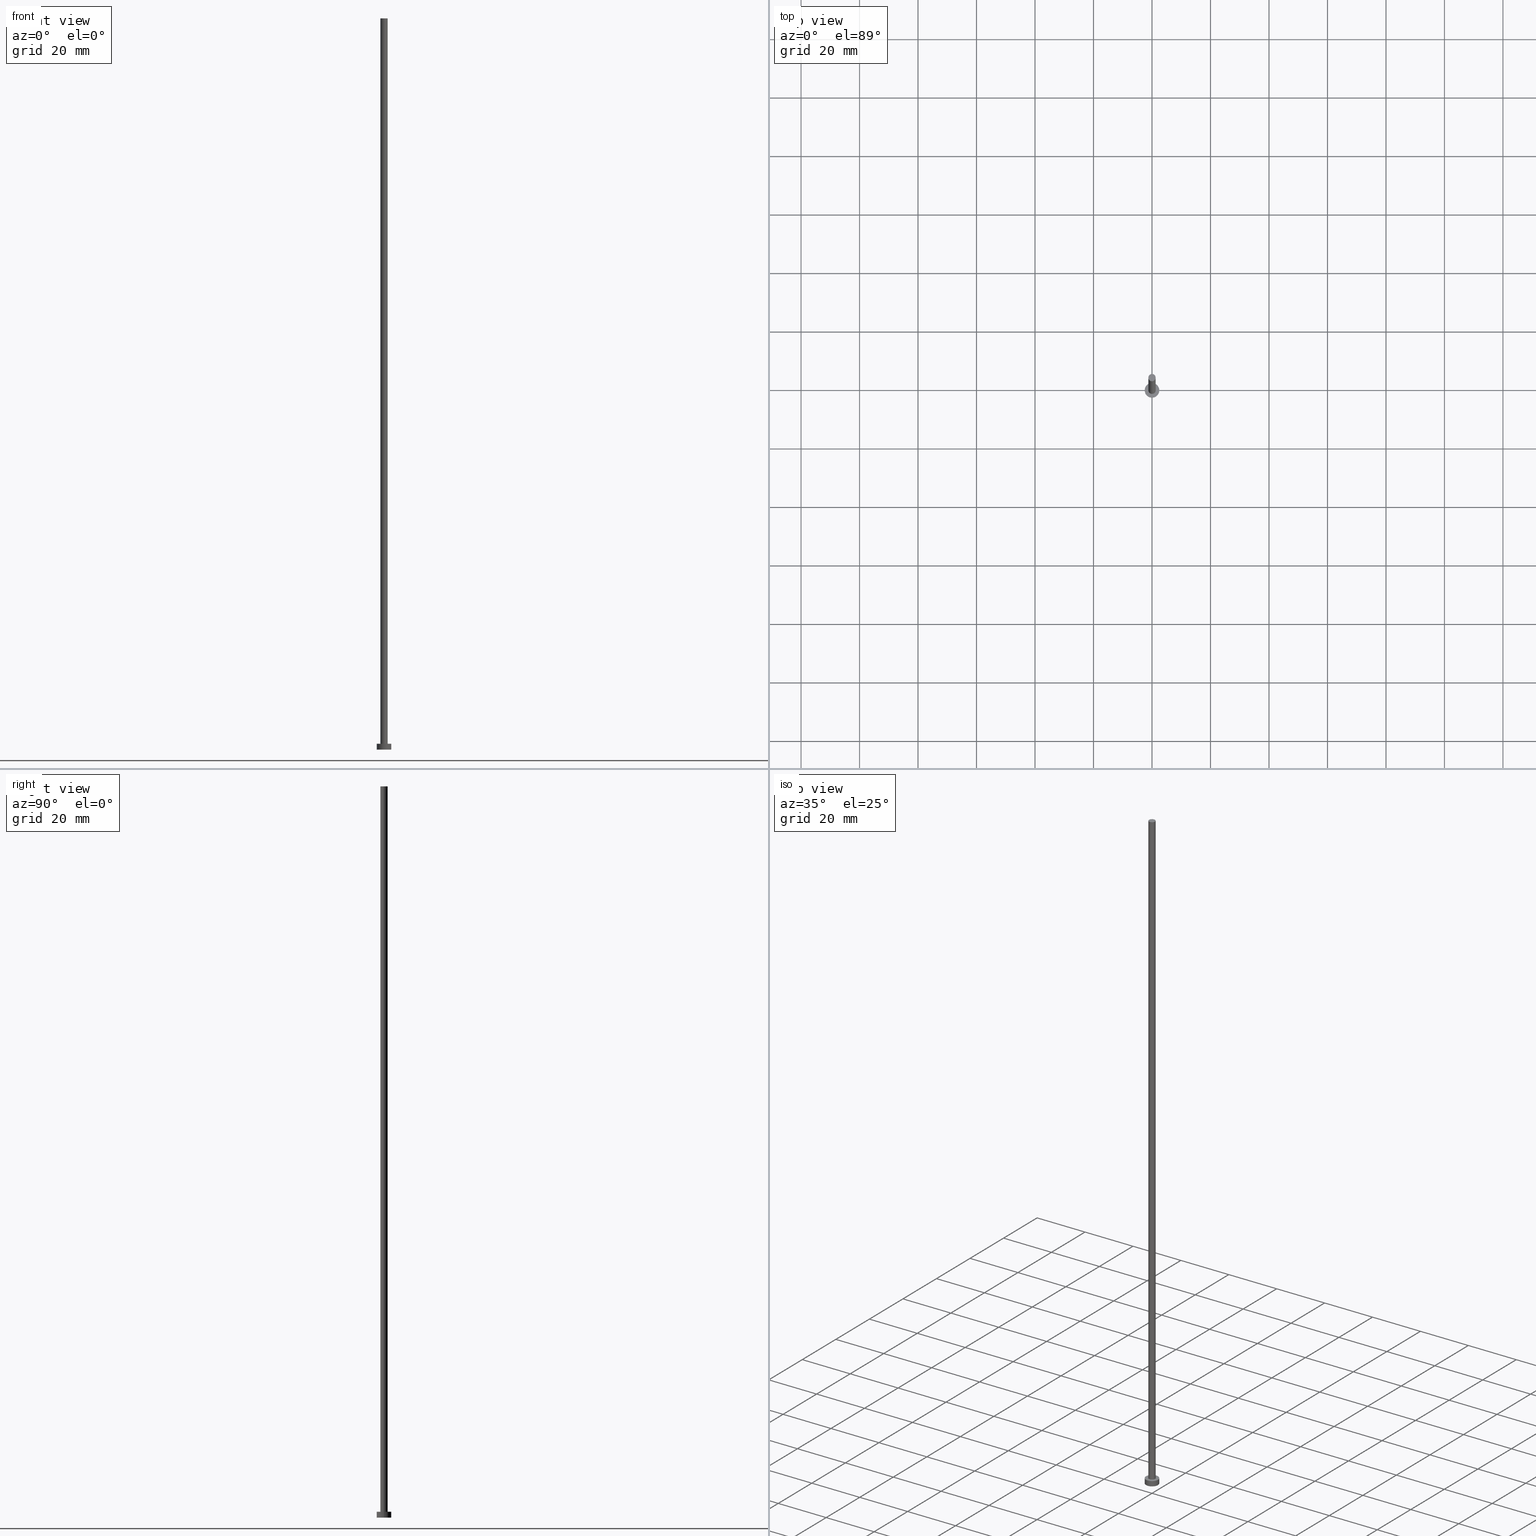
[diagram: canonical four-view strip — front | top / right | iso, engineering-drawing reading convention]
A machine part, canonical four-view strip (front | top / right | iso — engineering-drawing reading convention). The complete STEP part file that produces these views, byte-faithful:
ISO-10303-21;
HEADER;
FILE_DESCRIPTION (( 'STEP AP203' ),
    '1' );
FILE_NAME ('c1be.STEP',
    '2023-02-13T14:27:45',
    ( '' ),
    ( '' ),
    'SwSTEP 2.0',
    'SolidWorks 2019',
    '' );
FILE_SCHEMA (( 'CONFIG_CONTROL_DESIGN' ));
ENDSEC;

DATA;
#1 = ADVANCED_FACE ( 'NONE', ( #233 ), #209, .T. ) ;
#2 = DATE_TIME_ROLE ( 'classification_date' ) ;
#3 = DIRECTION ( 'NONE',  ( 0.000000000000000000, 0.000000000000000000, 1.000000000000000000 ) ) ;
#4 = PERSON_AND_ORGANIZATION_ROLE ( 'classification_officer' ) ;
#5 = DIRECTION ( 'NONE',  ( -0.000000000000000000, -0.000000000000000000, -1.000000000000000000 ) ) ;
#6 = DATE_AND_TIME ( #243, #110 ) ;
#7 = APPROVAL_ROLE ( '' ) ;
#8 = EDGE_LOOP ( 'NONE', ( #17, #232, #82, #156 ) ) ;
#9 = FACE_OUTER_BOUND ( 'NONE', #231, .T. ) ;
#10 = ORIENTED_EDGE ( 'NONE', *, *, #134, .T. ) ;
#11 = CARTESIAN_POINT ( 'NONE',  ( -1.250000000000000000, 0.000000000000000000, 250.0000000000000000 ) ) ;
#12 = CARTESIAN_POINT ( 'NONE',  ( 0.000000000000000000, 0.000000000000000000, 0.000000000000000000 ) ) ;
#13 = EDGE_CURVE ( 'NONE', #176, #99, #210, .T. ) ;
#14 = ORIENTED_EDGE ( 'NONE', *, *, #132, .F. ) ;
#15 = VERTEX_POINT ( 'NONE', #59 ) ;
#16 = SHAPE_DEFINITION_REPRESENTATION ( #219, #164 ) ;
#17 = ORIENTED_EDGE ( 'NONE', *, *, #34, .F. ) ;
#18 = APPROVAL_STATUS ( 'not_yet_approved' ) ;
#19 = APPROVAL_DATE_TIME ( #142, #96 ) ;
#20 = AXIS2_PLACEMENT_3D ( 'NONE', #158, #155, #60 ) ;
#21 = SECURITY_CLASSIFICATION ( '', '', #188 ) ;
#22 = DIRECTION ( 'NONE',  ( 0.000000000000000000, 0.000000000000000000, 1.000000000000000000 ) ) ;
#23 = VECTOR ( 'NONE', #70, 1000.000000000000000 ) ;
#24 = APPROVAL_PERSON_ORGANIZATION ( #149, #185, #114 ) ;
#25 = FACE_OUTER_BOUND ( 'NONE', #75, .T. ) ;
#26 = CC_DESIGN_PERSON_AND_ORGANIZATION_ASSIGNMENT ( #86, #65, ( #76 ) ) ;
#27 = DIRECTION ( 'NONE',  ( 1.000000000000000000, 0.000000000000000000, 0.000000000000000000 ) ) ;
#28 = VECTOR ( 'NONE', #171, 1000.000000000000000 ) ;
#29 = DATE_AND_TIME ( #52, #167 ) ;
#30 = VERTEX_POINT ( 'NONE', #93 ) ;
#31 = DIRECTION ( 'NONE',  ( -1.000000000000000000, 0.000000000000000000, 0.000000000000000000 ) ) ;
#32 = ORIENTED_EDGE ( 'NONE', *, *, #134, .F. ) ;
#33 = DIRECTION ( 'NONE',  ( -0.000000000000000000, -0.000000000000000000, -1.000000000000000000 ) ) ;
#34 = EDGE_CURVE ( 'NONE', #15, #99, #113, .T. ) ;
#35 = ORIENTED_EDGE ( 'NONE', *, *, #90, .F. ) ;
#36 = DIRECTION ( 'NONE',  ( 0.000000000000000000, 0.000000000000000000, 1.000000000000000000 ) ) ;
#37 = DIRECTION ( 'NONE',  ( -0.000000000000000000, -0.000000000000000000, -1.000000000000000000 ) ) ;
#38 = AXIS2_PLACEMENT_3D ( 'NONE', #72, #106, #91 ) ;
#39 = ADVANCED_FACE ( 'NONE', ( #9 ), #84, .T. ) ;
#40 = DIRECTION ( 'NONE',  ( 1.000000000000000000, 0.000000000000000000, 0.000000000000000000 ) ) ;
#41 = LINE ( 'NONE', #202, #23 ) ;
#42 = PERSON_AND_ORGANIZATION ( #123, #163 ) ;
#43 = PRODUCT ( 'c1be', 'c1be', '', ( #195 ) ) ;
#44 = LOCAL_TIME ( 15, 27, 45.00000000000000000, #153 ) ;
#45 = FACE_OUTER_BOUND ( 'NONE', #189, .T. ) ;
#46 = VECTOR ( 'NONE', #138, 1000.000000000000000 ) ;
#47 = PERSON_AND_ORGANIZATION ( #123, #163 ) ;
#48 = DIRECTION ( 'NONE',  ( -1.000000000000000000, 0.000000000000000000, 0.000000000000000000 ) ) ;
#49 = APPROVAL ( #92, 'NEUR�EN�' ) ;
#50 = APPROVAL_STATUS ( 'not_yet_approved' ) ;
#51 = PRODUCT_DEFINITION_FORMATION_WITH_SPECIFIED_SOURCE ( 'LIBOVOLN�', '', #43, .NOT_KNOWN. ) ;
#52 = CALENDAR_DATE ( 2023, 13, 2 ) ;
#53 = ORIENTED_EDGE ( 'NONE', *, *, #13, .F. ) ;
#54 = VERTEX_POINT ( 'NONE', #192 ) ;
#55 = ORIENTED_EDGE ( 'NONE', *, *, #102, .F. ) ;
#56 = EDGE_CURVE ( 'NONE', #78, #15, #71, .T. ) ;
#57 = ORIENTED_EDGE ( 'NONE', *, *, #216, .T. ) ;
#58 = CARTESIAN_POINT ( 'NONE',  ( 0.000000000000000000, 0.000000000000000000, 2.000000000000000000 ) ) ;
#59 = CARTESIAN_POINT ( 'NONE',  ( 1.250000000000000000, 1.530808498934191571E-16, 250.0000000000000000 ) ) ;
#60 = DIRECTION ( 'NONE',  ( 1.000000000000000000, 0.000000000000000000, 0.000000000000000000 ) ) ;
#61 = AXIS2_PLACEMENT_3D ( 'NONE', #62, #116, #228 ) ;
#62 = CARTESIAN_POINT ( 'NONE',  ( 0.000000000000000000, 0.000000000000000000, 2.000000000000000000 ) ) ;
#63 = CALENDAR_DATE ( 2023, 13, 2 ) ;
#64 = DIRECTION ( 'NONE',  ( 1.000000000000000000, 0.000000000000000000, 0.000000000000000000 ) ) ;
#65 = PERSON_AND_ORGANIZATION_ROLE ( 'creator' ) ;
#66 = VECTOR ( 'NONE', #95, 1000.000000000000000 ) ;
#67 = AXIS2_PLACEMENT_3D ( 'NONE', #130, #22, #222 ) ;
#68 = DIRECTION ( 'NONE',  ( 1.000000000000000000, 0.000000000000000000, 0.000000000000000000 ) ) ;
#69 = APPLICATION_CONTEXT ( 'configuration controlled 3d designs of mechanical parts and assemblies' ) ;
#70 = DIRECTION ( 'NONE',  ( -0.000000000000000000, -0.000000000000000000, -1.000000000000000000 ) ) ;
#71 = CIRCLE ( 'NONE', #20, 1.250000000000000000 ) ;
#72 = CARTESIAN_POINT ( 'NONE',  ( 0.000000000000000000, 0.000000000000000000, 250.0000000000000000 ) ) ;
#73 = LOCAL_TIME ( 15, 27, 45.00000000000000000, #234 ) ;
#74 = PERSON_AND_ORGANIZATION_ROLE ( 'creator' ) ;
#75 = EDGE_LOOP ( 'NONE', ( #35, #154, #227, #57 ) ) ;
#76 = PRODUCT_DEFINITION ( 'NEZN�M�', '', #51, #225 ) ;
#77 = PERSON_AND_ORGANIZATION ( #123, #163 ) ;
#78 = VERTEX_POINT ( 'NONE', #214 ) ;
#79 = LINE ( 'NONE', #11, #66 ) ;
#80 = VERTEX_POINT ( 'NONE', #198 ) ;
#81 = ORIENTED_EDGE ( 'NONE', *, *, #190, .T. ) ;
#82 = ORIENTED_EDGE ( 'NONE', *, *, #132, .T. ) ;
#83 = APPLICATION_PROTOCOL_DEFINITION ( 'international standard', 'config_control_design', 1994, #69 ) ;
#84 = CYLINDRICAL_SURFACE ( 'NONE', #105, 2.500000000000000000 ) ;
#85 = EDGE_LOOP ( 'NONE', ( #112, #32 ) ) ;
#86 = PERSON_AND_ORGANIZATION ( #123, #163 ) ;
#87 = AXIS2_PLACEMENT_3D ( 'NONE', #184, #5, #255 ) ;
#88 = CC_DESIGN_DATE_AND_TIME_ASSIGNMENT ( #217, #160, ( #76 ) ) ;
#89 = DIRECTION ( 'NONE',  ( 0.000000000000000000, 0.000000000000000000, 1.000000000000000000 ) ) ;
#90 = EDGE_CURVE ( 'NONE', #80, #54, #246, .T. ) ;
#91 = DIRECTION ( 'NONE',  ( 1.000000000000000000, 0.000000000000000000, 0.000000000000000000 ) ) ;
#92 = APPROVAL_STATUS ( 'not_yet_approved' ) ;
#93 = CARTESIAN_POINT ( 'NONE',  ( -2.500000000000000000, 0.000000000000000000, 2.000000000000000000 ) ) ;
#94 = APPROVAL_PERSON_ORGANIZATION ( #247, #96, #101 ) ;
#95 = DIRECTION ( 'NONE',  ( -0.000000000000000000, -0.000000000000000000, -1.000000000000000000 ) ) ;
#96 = APPROVAL ( #18, 'NEUR�EN�' ) ;
#97 = CARTESIAN_POINT ( 'NONE',  ( 0.000000000000000000, 0.000000000000000000, 250.0000000000000000 ) ) ;
#98 = PERSON_AND_ORGANIZATION ( #123, #163 ) ;
#99 = VERTEX_POINT ( 'NONE', #250 ) ;
#100 = CARTESIAN_POINT ( 'NONE',  ( 2.500000000000000000, 3.061616997868383141E-16, 2.000000000000000000 ) ) ;
#101 = APPROVAL_ROLE ( '' ) ;
#102 = EDGE_CURVE ( 'NONE', #80, #30, #223, .T. ) ;
#103 = AXIS2_PLACEMENT_3D ( 'NONE', #187, #166, #48 ) ;
#104 = CARTESIAN_POINT ( 'NONE',  ( 0.000000000000000000, 0.000000000000000000, 0.000000000000000000 ) ) ;
#105 = AXIS2_PLACEMENT_3D ( 'NONE', #213, #37, #31 ) ;
#106 = DIRECTION ( 'NONE',  ( 0.000000000000000000, 0.000000000000000000, 1.000000000000000000 ) ) ;
#107 = CC_DESIGN_SECURITY_CLASSIFICATION ( #21, ( #51 ) ) ;
#108 = PERSON_AND_ORGANIZATION ( #123, #163 ) ;
#109 = FACE_OUTER_BOUND ( 'NONE', #85, .T. ) ;
#110 = LOCAL_TIME ( 15, 27, 45.00000000000000000, #169 ) ;
#111 = APPROVAL_DATE_TIME ( #29, #185 ) ;
#112 = ORIENTED_EDGE ( 'NONE', *, *, #216, .F. ) ;
#113 = LINE ( 'NONE', #249, #46 ) ;
#114 = APPROVAL_ROLE ( '' ) ;
#115 = EDGE_LOOP ( 'NONE', ( #117, #121, #212, #14 ) ) ;
#116 = DIRECTION ( 'NONE',  ( 0.000000000000000000, 0.000000000000000000, 1.000000000000000000 ) ) ;
#117 = ORIENTED_EDGE ( 'NONE', *, *, #190, .F. ) ;
#118 = ORIENTED_EDGE ( 'NONE', *, *, #56, .T. ) ;
#119 =( NAMED_UNIT ( * ) SI_UNIT ( $, .STERADIAN. ) SOLID_ANGLE_UNIT ( ) );
#120 = EDGE_LOOP ( 'NONE', ( #53, #136 ) ) ;
#121 = ORIENTED_EDGE ( 'NONE', *, *, #34, .T. ) ;
#122 = CC_DESIGN_PERSON_AND_ORGANIZATION_ASSIGNMENT ( #108, #128, ( #51 ) ) ;
#123 = PERSON ( 'NEUR�EN�', 'NEUR�EN�', 'NEUR�EN�', ('NEUR�EN�'), ('NEUR�EN�'), ('NEUR�EN�') ) ;
#124 = AXIS2_PLACEMENT_3D ( 'NONE', #207, #3, #27 ) ;
#125 = PLANE ( 'NONE',  #179 ) ;
#126 = FACE_OUTER_BOUND ( 'NONE', #115, .T. ) ;
#127 = DIRECTION ( 'NONE',  ( 1.000000000000000000, 0.000000000000000000, 0.000000000000000000 ) ) ;
#128 = PERSON_AND_ORGANIZATION_ROLE ( 'design_supplier' ) ;
#129 = FACE_OUTER_BOUND ( 'NONE', #244, .T. ) ;
#130 = CARTESIAN_POINT ( 'NONE',  ( 0.000000000000000000, 0.000000000000000000, 2.000000000000000000 ) ) ;
#131 = CIRCLE ( 'NONE', #124, 2.500000000000000000 ) ;
#132 = EDGE_CURVE ( 'NONE', #78, #176, #79, .T. ) ;
#133 = ORIENTED_EDGE ( 'NONE', *, *, #102, .T. ) ;
#134 = EDGE_CURVE ( 'NONE', #54, #194, #208, .T. ) ;
#135 = ORIENTED_EDGE ( 'NONE', *, *, #229, .T. ) ;
#136 = ORIENTED_EDGE ( 'NONE', *, *, #152, .F. ) ;
#137 = APPROVAL_PERSON_ORGANIZATION ( #42, #49, #7 ) ;
#138 = DIRECTION ( 'NONE',  ( -0.000000000000000000, -0.000000000000000000, -1.000000000000000000 ) ) ;
#139 = ORIENTED_EDGE ( 'NONE', *, *, #90, .T. ) ;
#140 = AXIS2_PLACEMENT_3D ( 'NONE', #178, #251, #64 ) ;
#141 = DIRECTION ( 'NONE',  ( 0.000000000000000000, 0.000000000000000000, 1.000000000000000000 ) ) ;
#142 = DATE_AND_TIME ( #63, #73 ) ;
#143 = CALENDAR_DATE ( 2023, 13, 2 ) ;
#144 = CC_DESIGN_PERSON_AND_ORGANIZATION_ASSIGNMENT ( #47, #74, ( #51 ) ) ;
#145 = CARTESIAN_POINT ( 'NONE',  ( -2.500000000000000000, 0.000000000000000000, 0.000000000000000000 ) ) ;
#146 = PLANE ( 'NONE',  #67 ) ;
#147 = UNCERTAINTY_MEASURE_WITH_UNIT (LENGTH_MEASURE( 1.000000000000000082E-05 ), #193, 'distance_accuracy_value', 'NONE');
#148 = CARTESIAN_POINT ( 'NONE',  ( 0.000000000000000000, 0.000000000000000000, 250.0000000000000000 ) ) ;
#149 = PERSON_AND_ORGANIZATION ( #123, #163 ) ;
#150 = DATE_AND_TIME ( #186, #44 ) ;
#151 = AXIS2_PLACEMENT_3D ( 'NONE', #104, #241, #127 ) ;
#152 = EDGE_CURVE ( 'NONE', #99, #176, #242, .T. ) ;
#153 = COORDINATED_UNIVERSAL_TIME_OFFSET ( 1, 0, .AHEAD. ) ;
#154 = ORIENTED_EDGE ( 'NONE', *, *, #229, .F. ) ;
#155 = DIRECTION ( 'NONE',  ( 0.000000000000000000, 0.000000000000000000, 1.000000000000000000 ) ) ;
#156 = ORIENTED_EDGE ( 'NONE', *, *, #13, .T. ) ;
#157 =( GEOMETRIC_REPRESENTATION_CONTEXT ( 3 ) GLOBAL_UNCERTAINTY_ASSIGNED_CONTEXT ( ( #147 ) ) GLOBAL_UNIT_ASSIGNED_CONTEXT ( ( #193, #159, #119 ) ) REPRESENTATION_CONTEXT ( 'NONE', 'WORKASPACE' ) );
#158 = CARTESIAN_POINT ( 'NONE',  ( 0.000000000000000000, 0.000000000000000000, 250.0000000000000000 ) ) ;
#159 =( NAMED_UNIT ( * ) PLANE_ANGLE_UNIT ( ) SI_UNIT ( $, .RADIAN. ) );
#160 = DATE_TIME_ROLE ( 'creation_date' ) ;
#161 = CC_DESIGN_APPROVAL ( #185, ( #21 ) ) ;
#162 = DIRECTION ( 'NONE',  ( 0.000000000000000000, 0.000000000000000000, 1.000000000000000000 ) ) ;
#163 = ORGANIZATION ( 'NEUR�EN�', 'NEUR�EN�', '' ) ;
#164 = ADVANCED_BREP_SHAPE_REPRESENTATION ( 'c1be', ( #197, #191 ), #157 ) ;
#165 = EDGE_CURVE ( 'NONE', #30, #194, #41, .T. ) ;
#166 = DIRECTION ( 'NONE',  ( -0.000000000000000000, -0.000000000000000000, -1.000000000000000000 ) ) ;
#167 = LOCAL_TIME ( 15, 27, 45.00000000000000000, #226 ) ;
#168 = APPROVAL_DATE_TIME ( #6, #49 ) ;
#169 = COORDINATED_UNIVERSAL_TIME_OFFSET ( 1, 0, .AHEAD. ) ;
#170 = ORIENTED_EDGE ( 'NONE', *, *, #165, .F. ) ;
#171 = DIRECTION ( 'NONE',  ( -0.000000000000000000, -0.000000000000000000, -1.000000000000000000 ) ) ;
#172 = CARTESIAN_POINT ( 'NONE',  ( 0.000000000000000000, 0.000000000000000000, 0.000000000000000000 ) ) ;
#173 = APPLICATION_PROTOCOL_DEFINITION ( 'international standard', 'config_control_design', 1994, #201 ) ;
#174 = DIRECTION ( 'NONE',  ( -1.000000000000000000, 0.000000000000000000, 0.000000000000000000 ) ) ;
#175 = AXIS2_PLACEMENT_3D ( 'NONE', #58, #141, #245 ) ;
#176 = VERTEX_POINT ( 'NONE', #239 ) ;
#177 = AXIS2_PLACEMENT_3D ( 'NONE', #148, #162, #180 ) ;
#178 = CARTESIAN_POINT ( 'NONE',  ( 0.000000000000000000, 0.000000000000000000, 2.000000000000000000 ) ) ;
#179 = AXIS2_PLACEMENT_3D ( 'NONE', #204, #89, #238 ) ;
#180 = DIRECTION ( 'NONE',  ( 1.000000000000000000, 0.000000000000000000, -0.000000000000000000 ) ) ;
#181 = ADVANCED_FACE ( 'NONE', ( #126 ), #205, .T. ) ;
#182 = AXIS2_PLACEMENT_3D ( 'NONE', #97, #33, #174 ) ;
#183 = CIRCLE ( 'NONE', #38, 1.250000000000000000 ) ;
#184 = CARTESIAN_POINT ( 'NONE',  ( 0.000000000000000000, 0.000000000000000000, 250.0000000000000000 ) ) ;
#185 = APPROVAL ( #50, 'NEUR�EN�' ) ;
#186 = CALENDAR_DATE ( 2023, 13, 2 ) ;
#187 = CARTESIAN_POINT ( 'NONE',  ( 0.000000000000000000, 0.000000000000000000, 2.000000000000000000 ) ) ;
#188 = SECURITY_CLASSIFICATION_LEVEL ( 'unclassified' ) ;
#189 = EDGE_LOOP ( 'NONE', ( #135, #133 ) ) ;
#190 = EDGE_CURVE ( 'NONE', #15, #78, #183, .T. ) ;
#191 = AXIS2_PLACEMENT_3D ( 'NONE', #12, #36, #40 ) ;
#192 = CARTESIAN_POINT ( 'NONE',  ( 2.500000000000000000, 3.061616997868383141E-16, 0.000000000000000000 ) ) ;
#193 =( LENGTH_UNIT ( ) NAMED_UNIT ( * ) SI_UNIT ( .MILLI., .METRE. ) );
#194 = VERTEX_POINT ( 'NONE', #145 ) ;
#195 = MECHANICAL_CONTEXT ( 'NONE', #201, 'mechanical' ) ;
#196 = CC_DESIGN_DATE_AND_TIME_ASSIGNMENT ( #150, #2, ( #21 ) ) ;
#197 = MANIFOLD_SOLID_BREP ( 'P�idat vysunut�m3', #248 ) ;
#198 = CARTESIAN_POINT ( 'NONE',  ( 2.500000000000000000, 3.061616997868383141E-16, 2.000000000000000000 ) ) ;
#199 = CC_DESIGN_APPROVAL ( #49, ( #51 ) ) ;
#200 = PERSON_AND_ORGANIZATION_ROLE ( 'design_owner' ) ;
#201 = APPLICATION_CONTEXT ( 'configuration controlled 3d designs of mechanical parts and assemblies' ) ;
#202 = CARTESIAN_POINT ( 'NONE',  ( -2.500000000000000000, 0.000000000000000000, 2.000000000000000000 ) ) ;
#203 = CC_DESIGN_PERSON_AND_ORGANIZATION_ASSIGNMENT ( #98, #200, ( #43 ) ) ;
#204 = CARTESIAN_POINT ( 'NONE',  ( 0.000000000000000000, 0.000000000000000000, 0.000000000000000000 ) ) ;
#205 = CYLINDRICAL_SURFACE ( 'NONE', #87, 1.250000000000000000 ) ;
#206 = PLANE ( 'NONE',  #177 ) ;
#207 = CARTESIAN_POINT ( 'NONE',  ( 0.000000000000000000, 0.000000000000000000, 2.000000000000000000 ) ) ;
#208 = CIRCLE ( 'NONE', #215, 2.500000000000000000 ) ;
#209 = CYLINDRICAL_SURFACE ( 'NONE', #182, 1.250000000000000000 ) ;
#210 = CIRCLE ( 'NONE', #61, 1.250000000000000000 ) ;
#211 = LOCAL_TIME ( 15, 27, 45.00000000000000000, #252 ) ;
#212 = ORIENTED_EDGE ( 'NONE', *, *, #152, .T. ) ;
#213 = CARTESIAN_POINT ( 'NONE',  ( 0.000000000000000000, 0.000000000000000000, 2.000000000000000000 ) ) ;
#214 = CARTESIAN_POINT ( 'NONE',  ( -1.250000000000000000, 0.000000000000000000, 250.0000000000000000 ) ) ;
#215 = AXIS2_PLACEMENT_3D ( 'NONE', #172, #230, #68 ) ;
#216 = EDGE_CURVE ( 'NONE', #194, #54, #237, .T. ) ;
#217 = DATE_AND_TIME ( #143, #211 ) ;
#218 = ADVANCED_FACE ( 'NONE', ( #254, #45 ), #146, .T. ) ;
#219 = PRODUCT_DEFINITION_SHAPE ( 'NONE', 'NONE',  #76 ) ;
#220 = ADVANCED_FACE ( 'NONE', ( #129 ), #206, .T. ) ;
#221 = ADVANCED_FACE ( 'NONE', ( #25 ), #224, .T. ) ;
#222 = DIRECTION ( 'NONE',  ( 1.000000000000000000, 0.000000000000000000, -0.000000000000000000 ) ) ;
#223 = CIRCLE ( 'NONE', #175, 2.500000000000000000 ) ;
#224 = CYLINDRICAL_SURFACE ( 'NONE', #103, 2.500000000000000000 ) ;
#225 = DESIGN_CONTEXT ( 'detailed design', #69, 'design' ) ;
#226 = COORDINATED_UNIVERSAL_TIME_OFFSET ( 1, 0, .AHEAD. ) ;
#227 = ORIENTED_EDGE ( 'NONE', *, *, #165, .T. ) ;
#228 = DIRECTION ( 'NONE',  ( 1.000000000000000000, 0.000000000000000000, 0.000000000000000000 ) ) ;
#229 = EDGE_CURVE ( 'NONE', #30, #80, #131, .T. ) ;
#230 = DIRECTION ( 'NONE',  ( 0.000000000000000000, 0.000000000000000000, 1.000000000000000000 ) ) ;
#231 = EDGE_LOOP ( 'NONE', ( #55, #139, #10, #170 ) ) ;
#232 = ORIENTED_EDGE ( 'NONE', *, *, #56, .F. ) ;
#233 = FACE_OUTER_BOUND ( 'NONE', #8, .T. ) ;
#234 = COORDINATED_UNIVERSAL_TIME_OFFSET ( 1, 0, .AHEAD. ) ;
#235 = ADVANCED_FACE ( 'NONE', ( #109 ), #125, .F. ) ;
#236 = PRODUCT_RELATED_PRODUCT_CATEGORY ( 'detail', '', ( #43 ) ) ;
#237 = CIRCLE ( 'NONE', #151, 2.500000000000000000 ) ;
#238 = DIRECTION ( 'NONE',  ( 1.000000000000000000, 0.000000000000000000, -0.000000000000000000 ) ) ;
#239 = CARTESIAN_POINT ( 'NONE',  ( -1.250000000000000000, 0.000000000000000000, 2.000000000000000000 ) ) ;
#240 = CC_DESIGN_APPROVAL ( #96, ( #76 ) ) ;
#241 = DIRECTION ( 'NONE',  ( 0.000000000000000000, 0.000000000000000000, 1.000000000000000000 ) ) ;
#242 = CIRCLE ( 'NONE', #140, 1.250000000000000000 ) ;
#243 = CALENDAR_DATE ( 2023, 13, 2 ) ;
#244 = EDGE_LOOP ( 'NONE', ( #118, #81 ) ) ;
#245 = DIRECTION ( 'NONE',  ( 1.000000000000000000, 0.000000000000000000, 0.000000000000000000 ) ) ;
#246 = LINE ( 'NONE', #100, #28 ) ;
#247 = PERSON_AND_ORGANIZATION ( #123, #163 ) ;
#248 = CLOSED_SHELL ( 'NONE', ( #181, #39, #221, #218, #235, #1, #220 ) ) ;
#249 = CARTESIAN_POINT ( 'NONE',  ( 1.250000000000000000, 1.530808498934191571E-16, 250.0000000000000000 ) ) ;
#250 = CARTESIAN_POINT ( 'NONE',  ( 1.250000000000000000, 1.530808498934191571E-16, 2.000000000000000000 ) ) ;
#251 = DIRECTION ( 'NONE',  ( 0.000000000000000000, 0.000000000000000000, 1.000000000000000000 ) ) ;
#252 = COORDINATED_UNIVERSAL_TIME_OFFSET ( 1, 0, .AHEAD. ) ;
#253 = CC_DESIGN_PERSON_AND_ORGANIZATION_ASSIGNMENT ( #77, #4, ( #21 ) ) ;
#254 = FACE_BOUND ( 'NONE', #120, .T. ) ;
#255 = DIRECTION ( 'NONE',  ( -1.000000000000000000, 0.000000000000000000, 0.000000000000000000 ) ) ;
ENDSEC;
END-ISO-10303-21;
